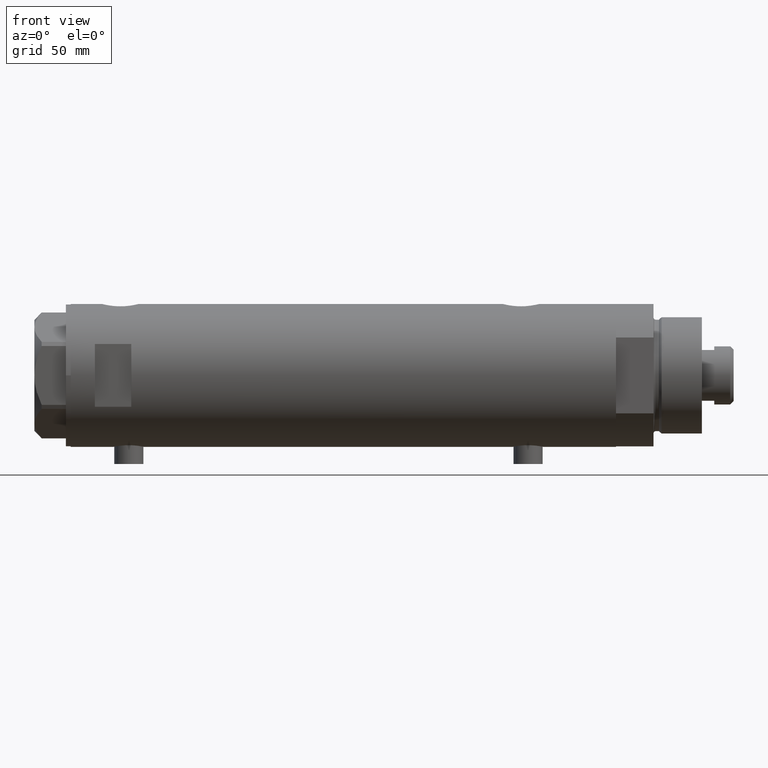
[diagram: clean part render]
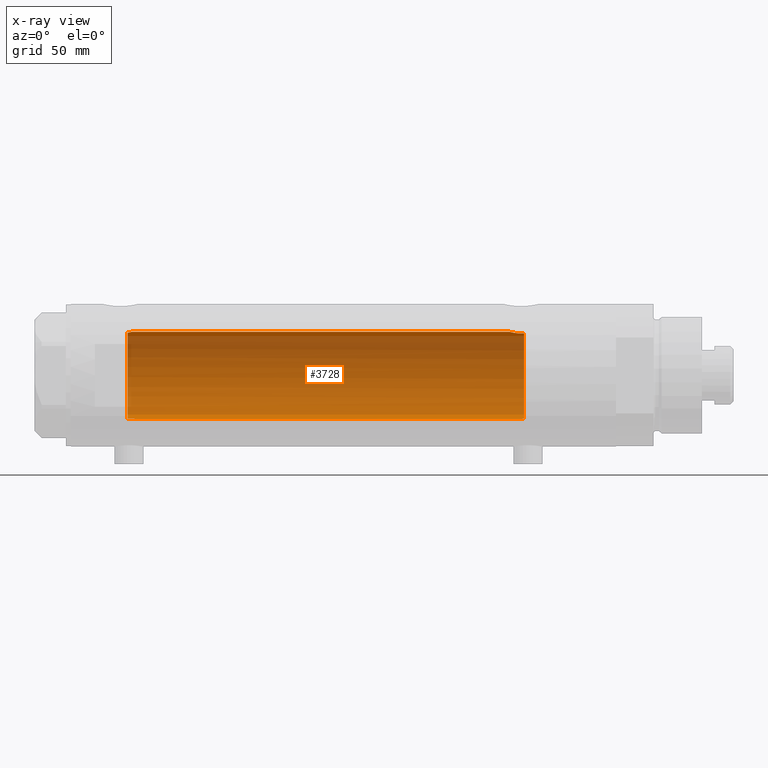
[diagram: x-ray — body ghosted, one internal face saturated and labeled with its STEP entity id]
A machine part, front view, then the same camera in x-ray: the body is ghosted and one INTERNAL B-rep face — a face not visible from any outside direction — is saturated and labeled: STEP entity #3728.
In plain terms, the highlighted cylindrical surface (partial cylindrical patch) has radius 18 mm, axis along (1, 0, -0).
Its self-contained STEP definition (entity closure, byte-faithful):
#24 = EDGE_CURVE ( 'NONE', #973, #3722, #3103, .T. ) ;
#35 = CARTESIAN_POINT ( 'NONE',  ( -17.82508408272472877, 2.503276281002373427, 88.73510831259079623 ) ) ;
#60 = CARTESIAN_POINT ( 'NONE',  ( -17.94624864476198312, 1.397590066628585426, 86.51900161024209979 ) ) ;
#173 = VERTEX_POINT ( 'NONE', #3652 ) ;
#209 = AXIS2_PLACEMENT_3D ( 'NONE', #1838, #2143, #1732 ) ;
#228 = ORIENTED_EDGE ( 'NONE', *, *, #4488, .T. ) ;
#245 = FACE_OUTER_BOUND ( 'NONE', #1930, .T. ) ;
#263 = CARTESIAN_POINT ( 'NONE',  ( -18.00000000000000000, 0.3463326441765542940, -73.79999999999999716 ) ) ;
#286 = CARTESIAN_POINT ( 'NONE',  ( 18.00000000000000355, 0.1844036484100888551, -68.53500000000001080 ) ) ;
#403 = CARTESIAN_POINT ( 'NONE',  ( -17.87088460660653766, 2.153683778660669290, 87.31724841463824305 ) ) ;
#447 = CARTESIAN_POINT ( 'NONE',  ( 17.83158514913445103, 2.461498934476295641, 87.89965995681275501 ) ) ;
#471 = CARTESIAN_POINT ( 'NONE',  ( -17.84158955897572696, 2.383204526717101146, 87.82263758307625778 ) ) ;
#597 = CARTESIAN_POINT ( 'NONE',  ( 17.41328271218090151, 4.558641711475909908, -71.69087254718661484 ) ) ;
#606 = CARTESIAN_POINT ( 'NONE',  ( -17.91832049203241084, 1.716810780632745725, -74.47468596615662761 ) ) ;
#666 = DIRECTION ( 'NONE',  ( 0.000000000000000000, 0.000000000000000000, 1.000000000000000000 ) ) ;
#685 = CARTESIAN_POINT ( 'NONE',  ( -17.95286768021396284, 1.309280107997305764, -74.16336257470372573 ) ) ;
#701 = CARTESIAN_POINT ( 'NONE',  ( 17.43128843254317673, 4.489613141718955980, -71.51700003713169451 ) ) ;
#740 = CARTESIAN_POINT ( 'NONE',  ( 17.85293122918850628, 2.302201220737751353, 87.81031080804814337 ) ) ;
#806 = CARTESIAN_POINT ( 'NONE',  ( 17.78617492856929516, 2.770629413254890316, 88.09682049650068336 ) ) ;
#810 = CARTESIAN_POINT ( 'NONE',  ( -17.85029215802977376, 2.318176074868579128, 87.64613149013023019 ) ) ;
#857 = CARTESIAN_POINT ( 'NONE',  ( 17.91007218376326549, 1.805463612197647949, 87.57866376881658255 ) ) ;
#880 = CARTESIAN_POINT ( 'NONE',  ( 17.89217382667230893, 1.974183297225214906, 87.64981302266164676 ) ) ;
#933 = CARTESIAN_POINT ( 'NONE',  ( -17.90642342847949919, 1.833030277983170642, -74.59999999999932641 ) ) ;
#961 = CARTESIAN_POINT ( 'NONE',  ( 17.91189082287941758, 1.809824880389068857, -68.86912370284670715 ) ) ;
#973 = VERTEX_POINT ( 'NONE', #933 ) ;
#1012 = CARTESIAN_POINT ( 'NONE',  ( 17.99716691696285764, 0.3685254503903798162, -68.54545042928663179 ) ) ;
#1036 = CARTESIAN_POINT ( 'NONE',  ( 17.33118376015917050, 4.861110225087390546, -73.13112109378174353 ) ) ;
#1052 = ORIENTED_EDGE ( 'NONE', *, *, #4473, .T. ) ;
#1144 = AXIS2_PLACEMENT_3D ( 'NONE', #1332, #4015, #4720 ) ;
#1155 = B_SPLINE_CURVE_WITH_KNOTS ( 'NONE', 3,
 ( #2848, #286, #1012, #1329, #1429, #2533, #961, #2480, #1717, #4011, #3907, #3625, #1773, #1796, #3239, #4714, #3957, #701, #597, #1410, #4345, #3933, #1036, #2505, #2175, #1820, #3281 ),
 .UNSPECIFIED., .F., .F.,
 ( 4, 2, 2, 2, 2, 2, 2, 2, 2, 2, 1, 2, 2, 4 ),
 ( 0.01528157848519460030, 0.01583467956029640383, 0.01638778063539821084, 0.01749398278560181097, 0.01804708386070360063, 0.01860018493580539375, 0.01915328601090718341, 0.01970638708600897654, 0.02081258923621259055, 0.02136569031131440102, 0.02191879138641621150, 0.02247189246151801850, 0.02302499353661982551, 0.02413119568682348462 ),
 .UNSPECIFIED. ) ;
#1220 = ORIENTED_EDGE ( 'NONE', *, *, #4638, .F. ) ;
#1225 = CARTESIAN_POINT ( 'NONE',  ( 17.98843015915092636, 0.7391836159806510764, 87.27731130524777825 ) ) ;
#1236 = CARTESIAN_POINT ( 'NONE',  ( 18.00000000000000000, 0.000000000000000000, 87.23499999999999943 ) ) ;
#1278 = CARTESIAN_POINT ( 'NONE',  ( 18.00000000000000000, 2.204364238465235428E-15, 112.5999999999999801 ) ) ;
#1329 = CARTESIAN_POINT ( 'NONE',  ( 17.98587882862718601, 0.7362002489460812704, -68.58746722239204985 ) ) ;
#1332 = CARTESIAN_POINT ( 'NONE',  ( 0.000000000000000000, 0.000000000000000000, -74.59999999999999432 ) ) ;
#1402 = CARTESIAN_POINT ( 'NONE',  ( -18.00000000000000000, 0.000000000000000000, -73.79999999999999716 ) ) ;
#1410 = CARTESIAN_POINT ( 'NONE',  ( 17.38237957915196930, 4.675094569549007595, -72.04138980228258049 ) ) ;
#1414 = LINE ( 'NONE', #2875, #2223 ) ;
#1417 = EDGE_CURVE ( 'NONE', #3690, #173, #1155, .T. ) ;
#1429 = CARTESIAN_POINT ( 'NONE',  ( 17.97733715731490989, 0.9209699998971188073, -68.61935966604423243 ) ) ;
#1501 = CARTESIAN_POINT ( 'NONE',  ( -17.82749843654113420, 2.486298441295534012, 88.91967494109754000 ) ) ;
#1521 = EDGE_CURVE ( 'NONE', #2754, #4325, #4268, .T. ) ;
#1545 = CARTESIAN_POINT ( 'NONE',  ( 17.58783030962034033, 3.829911878881809173, 89.09999999999998010 ) ) ;
#1568 = LINE ( 'NONE', #1278, #4004 ) ;
#1717 = CARTESIAN_POINT ( 'NONE',  ( 17.83051055968251930, 2.469307448774135327, -69.20420614498793555 ) ) ;
#1732 = DIRECTION ( 'NONE',  ( -1.000000000000000000, 0.000000000000000000, 0.000000000000000000 ) ) ;
#1773 = CARTESIAN_POINT ( 'NONE',  ( 17.68656644271518275, 3.347025706529861200, -69.86453774950912532 ) ) ;
#1796 = CARTESIAN_POINT ( 'NONE',  ( 17.63589737371338728, 3.604488512479872231, -70.12742655266251290 ) ) ;
#1820 = CARTESIAN_POINT ( 'NONE',  ( 17.34671983132638218, 4.806279138776325510, -74.24012329268310850 ) ) ;
#1838 = CARTESIAN_POINT ( 'NONE',  ( 0.000000000000000000, 0.000000000000000000, 112.5999999999999801 ) ) ;
#1930 = EDGE_LOOP ( 'NONE', ( #1220, #2170, #3720, #3047, #228, #2298, #1052, #2523 ) ) ;
#1995 = CIRCLE ( 'NONE', #4697, 18.00000000000000000 ) ;
#2086 = VERTEX_POINT ( 'NONE', #3023 ) ;
#2143 = DIRECTION ( 'NONE',  ( -0.000000000000000000, -0.000000000000000000, -1.000000000000000000 ) ) ;
#2170 = ORIENTED_EDGE ( 'NONE', *, *, #1521, .F. ) ;
#2175 = CARTESIAN_POINT ( 'NONE',  ( 17.33262691996381122, 4.855935766715059998, -73.87488940890202116 ) ) ;
#2223 = VECTOR ( 'NONE', #4274, 1000.000000000000000 ) ;
#2260 = CARTESIAN_POINT ( 'NONE',  ( -17.92135699193089238, 1.687027558082471623, 86.74588287565646283 ) ) ;
#2298 = ORIENTED_EDGE ( 'NONE', *, *, #24, .F. ) ;
#2312 = CARTESIAN_POINT ( 'NONE',  ( -17.95816418424195504, 1.237771781631975099, 86.42014148713398924 ) ) ;
#2480 = CARTESIAN_POINT ( 'NONE',  ( 17.85236636886078188, 2.306694554785098106, -69.11264586133007981 ) ) ;
#2505 = CARTESIAN_POINT ( 'NONE',  ( 17.32928165965088141, 4.867855194001448282, -73.31899018256650891 ) ) ;
#2508 = CARTESIAN_POINT ( 'NONE',  ( -18.00000000000000000, 3.061617490159550962E-16, 86.09999999999998010 ) ) ;
#2523 = ORIENTED_EDGE ( 'NONE', *, *, #1417, .F. ) ;
#2533 = CARTESIAN_POINT ( 'NONE',  ( 17.94405978035183580, 1.463580074031383349, -68.74553017623722440 ) ) ;
#2567 = VERTEX_POINT ( 'NONE', #2508 ) ;
#2608 = EDGE_CURVE ( 'NONE', #2567, #2086, #3603, .T. ) ;
#2621 = CARTESIAN_POINT ( 'NONE',  ( -17.88283752013080985, 2.053809615874002681, 87.16247768058089207 ) ) ;
#2754 = VERTEX_POINT ( 'NONE', #2770 ) ;
#2770 = CARTESIAN_POINT ( 'NONE',  ( 17.58783030962034033, 3.829911878881809173, 89.09999999999998010 ) ) ;
#2848 = CARTESIAN_POINT ( 'NONE',  ( 18.00000000000000000, 5.958021438967649550E-16, -68.53499999999999659 ) ) ;
#2875 = CARTESIAN_POINT ( 'NONE',  ( -18.00000000000000000, 0.000000000000000000, 112.5999999999999801 ) ) ;
#2879 = CARTESIAN_POINT ( 'NONE',  ( -17.90642342847949919, 1.833030277983170642, -74.59999999999932641 ) ) ;
#3006 = CARTESIAN_POINT ( 'NONE',  ( 17.63704841537101586, 3.603891093161664561, 88.81145343596536179 ) ) ;
#3009 = CARTESIAN_POINT ( 'NONE',  ( -17.98790814410162398, 0.7389993272946852043, 86.18352974933831945 ) ) ;
#3023 = CARTESIAN_POINT ( 'NONE',  ( -17.83255450012700649, 2.449489742783172996, 89.09999999999998010 ) ) ;
#3047 = ORIENTED_EDGE ( 'NONE', *, *, #2608, .F. ) ;
#3100 = CARTESIAN_POINT ( 'NONE',  ( 18.00000000000000000, 0.3728474842072334039, 87.23500000000001364 ) ) ;
#3103 = B_SPLINE_CURVE_WITH_KNOTS ( 'NONE', 3,
 ( #2879, #606, #3245, #685, #3216, #4352, #263, #3265 ),
 .UNSPECIFIED., .F., .F.,
 ( 4, 2, 2, 4 ),
 ( 0.01360098575045322854, 0.01411306367951529507, 0.01462514160857735987, 0.01564929746670149294 ),
 .UNSPECIFIED. ) ;
#3216 = CARTESIAN_POINT ( 'NONE',  ( -17.96336505771914815, 1.158437137172642295, -74.07804627005671705 ) ) ;
#3239 = CARTESIAN_POINT ( 'NONE',  ( 17.61032289555864239, 3.726910670425182204, -70.26756985850234116 ) ) ;
#3245 = CARTESIAN_POINT ( 'NONE',  ( -17.93028482699293136, 1.588885888720764861, -74.36224988169318806 ) ) ;
#3265 = CARTESIAN_POINT ( 'NONE',  ( -18.00000000000000000, 0.000000000000000000, -73.79999999999999716 ) ) ;
#3281 = CARTESIAN_POINT ( 'NONE',  ( 17.37157951943346035, 4.714681855650494136, -74.59999999999999432 ) ) ;
#3325 = CARTESIAN_POINT ( 'NONE',  ( -17.83255450012700649, 2.449489742783172996, 89.09999999999998010 ) ) ;
#3346 = CARTESIAN_POINT ( 'NONE',  ( -18.00000000000000000, 3.061617490159550962E-16, 86.09999999999998010 ) ) ;
#3410 = CARTESIAN_POINT ( 'NONE',  ( 17.95540531162507136, 1.279032093992329422, 87.40250861430335760 ) ) ;
#3603 = B_SPLINE_CURVE_WITH_KNOTS ( 'NONE', 3,
 ( #3346, #3692, #3009, #2312, #60, #2260, #4467, #2621, #403, #810, #471, #3735, #4123, #35, #1501, #3325 ),
 .UNSPECIFIED., .F., .F.,
 ( 4, 2, 2, 2, 2, 2, 2, 4 ),
 ( 0.007825597788866827872, 0.008929372539743339957, 0.009481259915181604672, 0.01003314729061987112, 0.01058503466605813584, 0.01113692204149640055, 0.01168880941693466527, 0.01224069679237292999 ),
 .UNSPECIFIED. ) ;
#3625 = CARTESIAN_POINT ( 'NONE',  ( 17.71174132276682300, 3.211689381115075737, -69.74121359250870000 ) ) ;
#3652 = CARTESIAN_POINT ( 'NONE',  ( 17.37157951943346035, 4.714681855650494136, -74.59999999999999432 ) ) ;
#3688 = CIRCLE ( 'NONE', #1144, 18.00000000000000000 ) ;
#3690 = VERTEX_POINT ( 'NONE', #4391 ) ;
#3692 = CARTESIAN_POINT ( 'NONE',  ( -18.00000000000000711, 0.3684436523298857957, 86.10000000000000853 ) ) ;
#3695 = EDGE_CURVE ( 'NONE', #2754, #2086, #1995, .T. ) ;
#3720 = ORIENTED_EDGE ( 'NONE', *, *, #3695, .T. ) ;
#3722 = VERTEX_POINT ( 'NONE', #1402 ) ;
#3728 = ADVANCED_FACE ( 'NONE', ( #245 ), #4676, .F. ) ;
#3735 = CARTESIAN_POINT ( 'NONE',  ( -17.82958311517957739, 2.471426257451372344, 88.18046645260449168 ) ) ;
#3782 = CARTESIAN_POINT ( 'NONE',  ( 18.00000000000000000, 0.000000000000000000, 87.23499999999999943 ) ) ;
#3907 = CARTESIAN_POINT ( 'NONE',  ( 17.76085061188610936, 2.927954048074870919, -69.51043039029092085 ) ) ;
#3933 = CARTESIAN_POINT ( 'NONE',  ( 17.34085862114803334, 4.826483754267692383, -72.76145238513613833 ) ) ;
#3949 = CARTESIAN_POINT ( 'NONE',  ( 0.000000000000000000, 0.000000000000000000, 89.09999999999998010 ) ) ;
#3957 = CARTESIAN_POINT ( 'NONE',  ( 17.49030773641652559, 4.256160900234556621, -71.01469509681784587 ) ) ;
#4002 = DIRECTION ( 'NONE',  ( 1.000000000000000000, 0.000000000000000000, 0.000000000000000000 ) ) ;
#4004 = VECTOR ( 'NONE', #4247, 1000.000000000000000 ) ;
#4011 = CARTESIAN_POINT ( 'NONE',  ( 17.78478726694685008, 2.779555353823083497, -69.40297143050467810 ) ) ;
#4015 = DIRECTION ( 'NONE',  ( 0.000000000000000000, 0.000000000000000000, -1.000000000000000000 ) ) ;
#4119 = CARTESIAN_POINT ( 'NONE',  ( 17.76196254920471773, 2.921230608637935156, 88.20535341986155231 ) ) ;
#4123 = CARTESIAN_POINT ( 'NONE',  ( -17.82614870471583401, 2.495683684402662639, 88.36291490437699281 ) ) ;
#4247 = DIRECTION ( 'NONE',  ( -0.000000000000000000, -0.000000000000000000, -1.000000000000000000 ) ) ;
#4268 = B_SPLINE_CURVE_WITH_KNOTS ( 'NONE', 3,
 ( #1545, #3006, #4482, #4119, #806, #447, #740, #880, #857, #4533, #3410, #1225, #3100, #3782 ),
 .UNSPECIFIED., .F., .F.,
 ( 4, 2, 2, 2, 2, 2, 4 ),
 ( 0.02614985543880327459, 0.02725214354003946751, 0.02780328759065755009, 0.02835443164127563268, 0.02890557569189371526, 0.02945671974251179437, 0.03055900784374796994 ),
 .UNSPECIFIED. ) ;
#4274 = DIRECTION ( 'NONE',  ( -0.000000000000000000, -0.000000000000000000, -1.000000000000000000 ) ) ;
#4325 = VERTEX_POINT ( 'NONE', #1236 ) ;
#4345 = CARTESIAN_POINT ( 'NONE',  ( 17.35631194664785681, 4.771042759406573630, -72.39667763205956419 ) ) ;
#4352 = CARTESIAN_POINT ( 'NONE',  ( -17.98949107760678245, 0.6899666364176424427, -73.87303358989281321 ) ) ;
#4391 = CARTESIAN_POINT ( 'NONE',  ( 18.00000000000000000, 5.958021438967649550E-16, -68.53499999999999659 ) ) ;
#4467 = CARTESIAN_POINT ( 'NONE',  ( -17.90830209998921063, 1.818440982043824983, 86.87434744171713419 ) ) ;
#4473 = EDGE_CURVE ( 'NONE', #973, #173, #3688, .T. ) ;
#4482 = CARTESIAN_POINT ( 'NONE',  ( 17.68814035493779713, 3.348626323852635700, 88.55183600219629625 ) ) ;
#4488 = EDGE_CURVE ( 'NONE', #2567, #3722, #1414, .T. ) ;
#4533 = CARTESIAN_POINT ( 'NONE',  ( 17.94167814235965963, 1.458276351914862490, 87.45504464479718365 ) ) ;
#4638 = EDGE_CURVE ( 'NONE', #4325, #3690, #1568, .T. ) ;
#4676 = CYLINDRICAL_SURFACE ( 'NONE', #209, 18.00000000000000000 ) ;
#4697 = AXIS2_PLACEMENT_3D ( 'NONE', #3949, #666, #4002 ) ;
#4714 = CARTESIAN_POINT ( 'NONE',  ( 17.53642083926971651, 4.065376572064631766, -70.70260027543616843 ) ) ;
#4720 = DIRECTION ( 'NONE',  ( -1.000000000000000000, 0.000000000000000000, 0.000000000000000000 ) ) ;